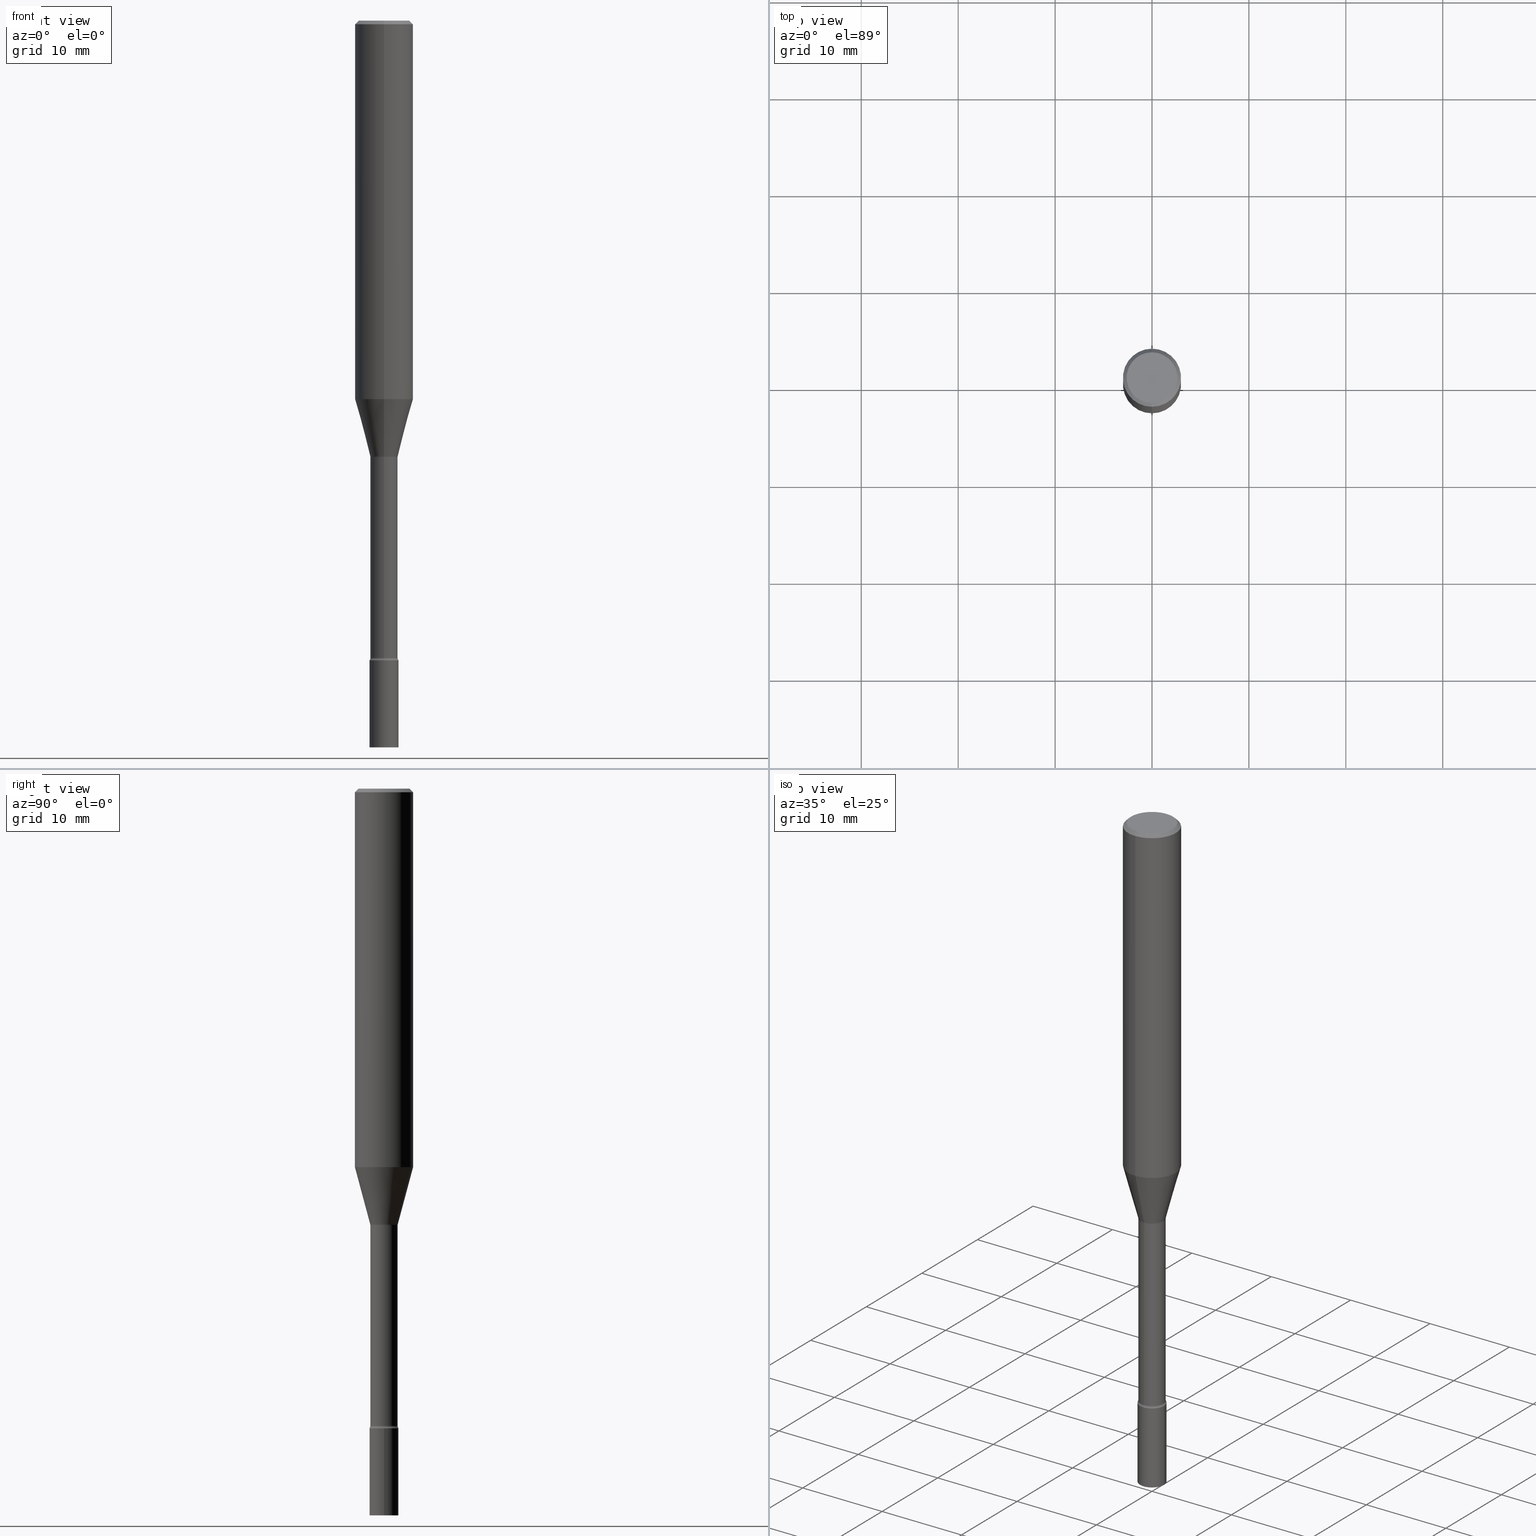
[diagram: canonical four-view strip — front | top / right | iso, engineering-drawing reading convention]
A machine part, canonical four-view strip (front | top / right | iso — engineering-drawing reading convention). The complete STEP part file that produces these views, byte-faithful:
ISO-10303-21;
HEADER;
FILE_DESCRIPTION (( 'STEP AP203' ),
    '1' );
FILE_NAME ('05371.STEP',
    '2024-03-08T23:15:07',
    ( '' ),
    ( '' ),
    'SwSTEP 2.0',
    'SolidWorks 2023',
    '' );
FILE_SCHEMA (( 'CONFIG_CONTROL_DESIGN' ));
ENDSEC;

DATA;
#1 = CALENDAR_DATE ( 2024, 8, 3 ) ;
#2 = FACE_OUTER_BOUND ( 'NONE', #502, .T. ) ;
#3 = ADVANCED_FACE ( 'NONE', ( #116 ), #242, .T. ) ;
#4 = VECTOR ( 'NONE', #37, 39.37007874015748143 ) ;
#5 = DIRECTION ( 'NONE',  ( -6.982962677686265922E-15, -1.000000000000000000, 4.922248637232907190E-15 ) ) ;
#6 = PERSON_AND_ORGANIZATION ( #392, #247 ) ;
#7 = DIRECTION ( 'NONE',  ( -6.982962677686265922E-15, -1.000000000000000000, 0.000000000000000000 ) ) ;
#8 = ORIENTED_EDGE ( 'NONE', *, *, #82, .T. ) ;
#9 = EDGE_CURVE ( 'NONE', #430, #375, #435, .T. ) ;
#10 = ORIENTED_EDGE ( 'NONE', *, *, #245, .T. ) ;
#11 = EDGE_CURVE ( 'NONE', #38, #282, #230, .T. ) ;
#12 = DIRECTION ( 'NONE',  ( -6.982962677686265922E-15, -1.000000000000000000, 0.000000000000000000 ) ) ;
#13 = PRODUCT_DEFINITION_FORMATION_WITH_SPECIFIED_SOURCE ( 'ANY', '', #113, .NOT_KNOWN. ) ;
#14 = DIRECTION ( 'NONE',  ( -2.445680166196959120E-29, 3.491178659276350979E-15, 1.000000000000000000 ) ) ;
#15 = VERTEX_POINT ( 'NONE', #34 ) ;
#16 = CIRCLE ( 'NONE', #389, 0.05904999999999999832 ) ;
#17 = ORIENTED_EDGE ( 'NONE', *, *, #451, .F. ) ;
#18 = ORIENTED_EDGE ( 'NONE', *, *, #491, .T. ) ;
#19 = DIRECTION ( 'NONE',  ( 1.000000000000000000, -6.982962677686265922E-15, 4.876176775795935793E-29 ) ) ;
#20 = VERTEX_POINT ( 'NONE', #438 ) ;
#21 = VECTOR ( 'NONE', #280, 39.37007874015748143 ) ;
#22 = FACE_OUTER_BOUND ( 'NONE', #339, .T. ) ;
#23 = ORIENTED_EDGE ( 'NONE', *, *, #174, .F. ) ;
#24 = DIRECTION ( 'NONE',  ( -2.445468806185136597E-29, 3.491481338843145583E-15, 1.000000000000000000 ) ) ;
#25 = AXIS2_PLACEMENT_3D ( 'NONE', #418, #56, #453 ) ;
#26 = CARTESIAN_POINT ( 'NONE',  ( 3.761636145230313250E-29, -5.369689796606469410E-15, -1.538073619446188589 ) ) ;
#27 = CARTESIAN_POINT ( 'NONE',  ( 4.069633519066611772E-16, 0.05549999999999111894, -2.588809927760847174 ) ) ;
#28 = LOCAL_TIME ( 18, 15, 7.000000000000000000, #323 ) ;
#29 = AXIS2_PLACEMENT_3D ( 'NONE', #195, #442, #405 ) ;
#30 = DIRECTION ( 'NONE',  ( 0.000000000000000000, 0.000000000000000000, 1.000000000000000000 ) ) ;
#31 = EDGE_CURVE ( 'NONE', #20, #212, #403, .T. ) ;
#32 = EDGE_LOOP ( 'NONE', ( #284, #137, #50, #341 ) ) ;
#33 = APPLICATION_CONTEXT ( 'configuration controlled 3d designs of mechanical parts and assemblies' ) ;
#34 = CARTESIAN_POINT ( 'NONE',  ( 4.195754854664024046E-16, 0.05904999999999088062, -2.598499999999999588 ) ) ;
#35 = PERSON_AND_ORGANIZATION ( #392, #247 ) ;
#36 = CARTESIAN_POINT ( 'NONE',  ( 6.355099911862797829E-29, -9.071827746129597685E-15, -2.598499999999999588 ) ) ;
#37 = DIRECTION ( 'NONE',  ( -2.445468806185136877E-29, 3.491481338843145188E-15, 1.000000000000000000 ) ) ;
#38 = VERTEX_POINT ( 'NONE', #321 ) ;
#39 = FACE_OUTER_BOUND ( 'NONE', #428, .T. ) ;
#40 = CIRCLE ( 'NONE', #236, 0.05549999999999999378 ) ;
#41 = SHAPE_DEFINITION_REPRESENTATION ( #229, #267 ) ;
#42 = DIRECTION ( 'NONE',  ( -2.445680166196959120E-29, 3.491178659276350979E-15, 1.000000000000000000 ) ) ;
#43 = APPROVAL_ROLE ( '' ) ;
#44 = CARTESIAN_POINT ( 'NONE',  ( 4.328346419905229650E-29, -6.178661813587029196E-15, -1.769792501787272654 ) ) ;
#45 = CALENDAR_DATE ( 2024, 8, 3 ) ;
#46 = CARTESIAN_POINT ( 'NONE',  ( -3.875544286115255238E-16, -0.05550000000000920169, -2.588809927760847174 ) ) ;
#47 = CC_DESIGN_APPROVAL ( #412, ( #13 ) ) ;
#48 = AXIS2_PLACEMENT_3D ( 'NONE', #169, #335, #294 ) ;
#49 = FACE_OUTER_BOUND ( 'NONE', #258, .T. ) ;
#50 = ORIENTED_EDGE ( 'NONE', *, *, #174, .T. ) ;
#51 = EDGE_CURVE ( 'NONE', #64, #203, #122, .T. ) ;
#52 = DIRECTION ( 'NONE',  ( -2.445680166196959400E-29, 3.491178659276351373E-15, 1.000000000000000000 ) ) ;
#53 = CLOSED_SHELL ( 'NONE', ( #104, #272, #57, #393 ) ) ;
#54 = CARTESIAN_POINT ( 'NONE',  ( 3.943512183469192595E-16, 0.05549999999999380429, -1.773674787463810798 ) ) ;
#55 = ORIENTED_EDGE ( 'NONE', *, *, #454, .T. ) ;
#56 = DIRECTION ( 'NONE',  ( -2.445680166196959120E-29, 3.491178659276350979E-15, 1.000000000000000000 ) ) ;
#57 = ADVANCED_FACE ( 'NONE', ( #516 ), #440, .T. ) ;
#58 = ORIENTED_EDGE ( 'NONE', *, *, #214, .T. ) ;
#59 = ORIENTED_EDGE ( 'NONE', *, *, #110, .F. ) ;
#60 = AXIS2_PLACEMENT_3D ( 'NONE', #376, #500, #100 ) ;
#61 = ORIENTED_EDGE ( 'NONE', *, *, #51, .T. ) ;
#62 = DIRECTION ( 'NONE',  ( -2.445680166196959120E-29, 3.491178659276350979E-15, 1.000000000000000000 ) ) ;
#63 = TOROIDAL_SURFACE ( 'NONE', #119, 0.07050000000000010425, 0.01499999999999994220 ) ;
#64 = VERTEX_POINT ( 'NONE', #413 ) ;
#65 = CARTESIAN_POINT ( 'NONE',  ( 3.979828918379984617E-16, 0.05601111260565780348, -1.769792501787272876 ) ) ;
#66 = DESIGN_CONTEXT ( 'detailed design', #33, 'design' ) ;
#67 = LOCAL_TIME ( 18, 15, 7.000000000000000000, #75 ) ;
#68 = ORIENTED_EDGE ( 'NONE', *, *, #454, .F. ) ;
#69 = AXIS2_PLACEMENT_3D ( 'NONE', #26, #509, #266 ) ;
#70 = CIRCLE ( 'NONE', #183, 0.01499999999999994220 ) ;
#71 = DIRECTION ( 'NONE',  ( -6.982962677686266711E-15, -1.000000000000000000, 0.000000000000000000 ) ) ;
#72 = CARTESIAN_POINT ( 'NONE',  ( 0.000000000000000000, 0.000000000000000000, 0.000000000000000000 ) ) ;
#73 = TOROIDAL_SURFACE ( 'NONE', #125, 0.07050000000000010425, 0.01499999999999994220 ) ;
#74 = DIRECTION ( 'NONE',  ( -2.445680166196959400E-29, 3.491178659276351373E-15, 1.000000000000000000 ) ) ;
#75 = COORDINATED_UNIVERSAL_TIME_OFFSET ( 5, 0, .BEHIND. ) ;
#76 = CC_DESIGN_PERSON_AND_ORGANIZATION_ASSIGNMENT ( #155, #285, ( #479 ) ) ;
#77 = CARTESIAN_POINT ( 'NONE',  ( 3.943512183468561013E-16, 0.05550000000000008399, -1.937604155898377489E-16 ) ) ;
#78 = APPROVAL_DATE_TIME ( #117, #218 ) ;
#79 = PLANE ( 'NONE',  #310 ) ;
#80 = EDGE_CURVE ( 'NONE', #38, #447, #296, .T. ) ;
#81 = FACE_OUTER_BOUND ( 'NONE', #415, .T. ) ;
#82 = EDGE_CURVE ( 'NONE', #430, #15, #70, .T. ) ;
#83 = AXIS2_PLACEMENT_3D ( 'NONE', #414, #133, #19 ) ;
#84 = DIRECTION ( 'NONE',  ( -6.982962677686266711E-15, -1.000000000000000000, 4.877332133888038554E-15 ) ) ;
#85 = APPROVAL_STATUS ( 'not_yet_approved' ) ;
#86 = DIRECTION ( 'NONE',  ( -2.445680166196959120E-29, 3.491178659276350979E-15, 1.000000000000000000 ) ) ;
#87 = DIRECTION ( 'NONE',  ( -2.445680166196959120E-29, 3.491178659276350979E-15, 1.000000000000000000 ) ) ;
#88 = ADVANCED_FACE ( 'NONE', ( #39 ), #250, .T. ) ;
#89 = SECURITY_CLASSIFICATION ( '', '', #278 ) ;
#90 = AXIS2_PLACEMENT_3D ( 'NONE', #167, #42, #482 ) ;
#91 = DIRECTION ( 'NONE',  ( -2.445680166196958559E-29, 3.491178659276351373E-15, 1.000000000000000000 ) ) ;
#92 = CC_DESIGN_PERSON_AND_ORGANIZATION_ASSIGNMENT ( #6, #166, ( #13 ) ) ;
#93 = DIRECTION ( 'NONE',  ( -2.445680166196959120E-29, 3.491178659276350979E-15, 1.000000000000000000 ) ) ;
#94 = DIRECTION ( 'NONE',  ( -2.445468806185136597E-29, 3.491481338843145583E-15, 1.000000000000000000 ) ) ;
#95 = ADVANCED_FACE ( 'NONE', ( #316 ), #63, .F. ) ;
#96 = CYLINDRICAL_SURFACE ( 'NONE', #25, 0.1180999999999999966 ) ;
#97 = ORIENTED_EDGE ( 'NONE', *, *, #409, .T. ) ;
#98 = LOCAL_TIME ( 18, 15, 7.000000000000000000, #126 ) ;
#99 = CC_DESIGN_PERSON_AND_ORGANIZATION_ASSIGNMENT ( #401, #162, ( #13 ) ) ;
#100 = DIRECTION ( 'NONE',  ( -6.982962677686265922E-15, -1.000000000000000000, 3.491178659276350979E-15 ) ) ;
#101 = AXIS2_PLACEMENT_3D ( 'NONE', #177, #14, #12 ) ;
#102 = EDGE_LOOP ( 'NONE', ( #175, #8, #297, #23 ) ) ;
#103 = CARTESIAN_POINT ( 'NONE',  ( 0.05904999999999999832, -4.123439461173740327E-16, 2.879382386107500220E-30 ) ) ;
#104 = ADVANCED_FACE ( 'NONE', ( #161 ), #481, .T. ) ;
#105 = ORIENTED_EDGE ( 'NONE', *, *, #245, .F. ) ;
#106 = EDGE_CURVE ( 'NONE', #256, #15, #455, .T. ) ;
#107 = DIRECTION ( 'NONE',  ( -2.445680166196959120E-29, 3.491178659276350979E-15, 1.000000000000000000 ) ) ;
#108 = AXIS2_PLACEMENT_3D ( 'NONE', #486, #124, #84 ) ;
#109 = FACE_OUTER_BOUND ( 'NONE', #102, .T. ) ;
#110 = EDGE_CURVE ( 'NONE', #420, #282, #148, .T. ) ;
#111 = VERTEX_POINT ( 'NONE', #46 ) ;
#112 = CALENDAR_DATE ( 2024, 8, 3 ) ;
#113 = PRODUCT ( '05371', '05371', '', ( #514 ) ) ;
#114 = ORIENTED_EDGE ( 'NONE', *, *, #222, .T. ) ;
#115 = CIRCLE ( 'NONE', #292, 0.05904999999999999832 ) ;
#116 = FACE_OUTER_BOUND ( 'NONE', #396, .T. ) ;
#117 = DATE_AND_TIME ( #1, #370 ) ;
#118 = DIRECTION ( 'NONE',  ( -2.445680166196959120E-29, 3.491178659276350979E-15, 1.000000000000000000 ) ) ;
#119 = AXIS2_PLACEMENT_3D ( 'NONE', #159, #515, #402 ) ;
#120 = PERSON_AND_ORGANIZATION ( #392, #247 ) ;
#121 = DIRECTION ( 'NONE',  ( -2.445680166196959120E-29, 3.491178659276350979E-15, 1.000000000000000000 ) ) ;
#122 = LINE ( 'NONE', #358, #21 ) ;
#123 = AXIS2_PLACEMENT_3D ( 'NONE', #193, #319, #275 ) ;
#124 = DIRECTION ( 'NONE',  ( -2.445680166196959120E-29, 3.491178659276350979E-15, 1.000000000000000000 ) ) ;
#125 = AXIS2_PLACEMENT_3D ( 'NONE', #312, #423, #150 ) ;
#126 = COORDINATED_UNIVERSAL_TIME_OFFSET ( 5, 0, .BEHIND. ) ;
#127 = DIRECTION ( 'NONE',  ( 2.445680166196959120E-29, -3.491178659276350979E-15, -1.000000000000000000 ) ) ;
#128 = ORIENTED_EDGE ( 'NONE', *, *, #201, .T. ) ;
#129 = CARTESIAN_POINT ( 'NONE',  ( 0.05904999999999999832, -9.484958205101287110E-15, -2.598499999999999588 ) ) ;
#130 = DIRECTION ( 'NONE',  ( -2.445468806185136877E-29, 3.491481338843145188E-15, 1.000000000000000000 ) ) ;
#131 = ORIENTED_EDGE ( 'NONE', *, *, #325, .T. ) ;
#132 = CIRCLE ( 'NONE', #210, 0.05549999999999999378 ) ;
#133 = DIRECTION ( 'NONE',  ( -2.438088387897960049E-29, 3.491481338843145188E-15, 1.000000000000000000 ) ) ;
#134 = DIRECTION ( 'NONE',  ( 2.445680166196959120E-29, -3.491178659276350979E-15, -1.000000000000000000 ) ) ;
#135 = EDGE_CURVE ( 'NONE', #15, #256, #16, .T. ) ;
#136 = ORIENTED_EDGE ( 'NONE', *, *, #192, .T. ) ;
#137 = ORIENTED_EDGE ( 'NONE', *, *, #180, .F. ) ;
#138 = FACE_OUTER_BOUND ( 'NONE', #422, .T. ) ;
#139 = ORIENTED_EDGE ( 'NONE', *, *, #80, .F. ) ;
#140 = DIRECTION ( 'NONE',  ( -1.000000000000000000, 6.982962677686265922E-15, -4.876176775795935793E-29 ) ) ;
#141 = CIRCLE ( 'NONE', #432, 0.1031000000000000111 ) ;
#142 = AXIS2_PLACEMENT_3D ( 'NONE', #72, #30, #331 ) ;
#143 = APPLICATION_CONTEXT ( 'configuration controlled 3d designs of mechanical parts and assemblies' ) ;
#144 = AXIS2_PLACEMENT_3D ( 'NONE', #317, #94, #329 ) ;
#145 = DIRECTION ( 'NONE',  ( -6.982962677686265922E-15, -1.000000000000000000, 4.922248637232907190E-15 ) ) ;
#146 =( CONVERSION_BASED_UNIT ( 'INCH', #391 ) LENGTH_UNIT ( ) NAMED_UNIT ( #147 ) );
#147 = DIMENSIONAL_EXPONENTS ( 1.000000000000000000, 0.000000000000000000, 0.000000000000000000, 0.000000000000000000, 0.000000000000000000, 0.000000000000000000, 0.000000000000000000 ) ;
#148 = CIRCLE ( 'NONE', #346, 0.1180999999999999966 ) ;
#149 = EDGE_CURVE ( 'NONE', #408, #375, #470, .T. ) ;
#150 = DIRECTION ( 'NONE',  ( -6.982962677686265922E-15, -1.000000000000000000, 3.491178659276350979E-15 ) ) ;
#151 = VERTEX_POINT ( 'NONE', #520 ) ;
#152 = CARTESIAN_POINT ( 'NONE',  ( 8.391509709327160624E-16, 0.1180999999999999411, -0.01500000000000042619 ) ) ;
#153 = ORIENTED_EDGE ( 'NONE', *, *, #288, .T. ) ;
#154 = ORIENTED_EDGE ( 'NONE', *, *, #417, .F. ) ;
#155 = PERSON_AND_ORGANIZATION ( #392, #247 ) ;
#156 = ADVANCED_FACE ( 'NONE', ( #320 ), #79, .F. ) ;
#157 = CARTESIAN_POINT ( 'NONE',  ( 6.355099911862797829E-29, -9.071827746129597685E-15, -2.598499999999999588 ) ) ;
#158 = AXIS2_PLACEMENT_3D ( 'NONE', #374, #134, #248 ) ;
#159 = CARTESIAN_POINT ( 'NONE',  ( 6.330853923481548511E-29, -9.038781552588869753E-15, -2.588809927760847174 ) ) ;
#160 = COORDINATED_UNIVERSAL_TIME_OFFSET ( 5, 0, .BEHIND. ) ;
#161 = FACE_OUTER_BOUND ( 'NONE', #204, .T. ) ;
#162 = PERSON_AND_ORGANIZATION_ROLE ( 'creator' ) ;
#163 = CARTESIAN_POINT ( 'NONE',  ( -8.246878922347479668E-16, -0.1180999999999999966, 4.123081996605370469E-16 ) ) ;
#164 = ADVANCED_FACE ( 'NONE', ( #81 ), #171, .T. ) ;
#165 = AXIS2_PLACEMENT_3D ( 'NONE', #384, #334, #290 ) ;
#166 = PERSON_AND_ORGANIZATION_ROLE ( 'design_supplier' ) ;
#167 = CARTESIAN_POINT ( 'NONE',  ( 0.000000000000000000, 0.000000000000000000, 0.000000000000000000 ) ) ;
#168 = PLANE ( 'NONE',  #510 ) ;
#169 = CARTESIAN_POINT ( 'NONE',  ( 0.000000000000000000, 0.000000000000000000, 0.000000000000000000 ) ) ;
#170 = EDGE_CURVE ( 'NONE', #207, #212, #199, .T. ) ;
#171 = CONICAL_SURFACE ( 'NONE', #426, 0.1180999999999999966, 0.7853981633974480570 ) ;
#172 = LINE ( 'NONE', #257, #395 ) ;
#173 = ORIENTED_EDGE ( 'NONE', *, *, #298, .T. ) ;
#174 = EDGE_CURVE ( 'NONE', #111, #256, #492, .T. ) ;
#175 = ORIENTED_EDGE ( 'NONE', *, *, #311, .F. ) ;
#176 = DIRECTION ( 'NONE',  ( -1.000000000000000000, 6.982962677686265922E-15, -4.883557194083112340E-29 ) ) ;
#177 = CARTESIAN_POINT ( 'NONE',  ( 6.331401094378485803E-29, -9.037997972721422711E-15, -2.588809927760847174 ) ) ;
#178 = VERTEX_POINT ( 'NONE', #324 ) ;
#179 = CARTESIAN_POINT ( 'NONE',  ( 4.123439461174461642E-16, 0.05904999999998968713, -2.952799999999999869 ) ) ;
#180 = EDGE_CURVE ( 'NONE', #111, #430, #463, .T. ) ;
#181 = DIRECTION ( 'NONE',  ( 1.000000000000000000, -6.982962677686273021E-15, 0.000000000000000000 ) ) ;
#182 = CIRCLE ( 'NONE', #165, 0.1180999999999999966 ) ;
#183 = AXIS2_PLACEMENT_3D ( 'NONE', #265, #224, #235 ) ;
#184 =( LENGTH_UNIT ( ) NAMED_UNIT ( * ) SI_UNIT ( $, .METRE. ) );
#185 = VECTOR ( 'NONE', #74, 39.37007874015748143 ) ;
#186 = DIRECTION ( 'NONE',  ( 1.839019923739600315E-15, 0.2588190451025249583, 0.9659258262890670910 ) ) ;
#187 = ADVANCED_FACE ( 'NONE', ( #2 ), #234, .T. ) ;
#188 = CARTESIAN_POINT ( 'NONE',  ( 7.220980290903470182E-29, -1.030964609733603853E-14, -2.952799999999999869 ) ) ;
#189 = ORIENTED_EDGE ( 'NONE', *, *, #106, .F. ) ;
#190 = APPROVAL ( #366, 'UNSPECIFIED' ) ;
#191 = CARTESIAN_POINT ( 'NONE',  ( 4.328346419905229650E-29, -6.178661813587029196E-15, -1.769792501787272654 ) ) ;
#192 = EDGE_CURVE ( 'NONE', #38, #408, #462, .T. ) ;
#193 = CARTESIAN_POINT ( 'NONE',  ( 4.328346419905229650E-29, -6.178661813587029196E-15, -1.769792501787272654 ) ) ;
#194 = APPROVAL_ROLE ( '' ) ;
#195 = CARTESIAN_POINT ( 'NONE',  ( 6.354550692872077420E-29, -9.072614258983912979E-15, -2.598499999999999588 ) ) ;
#196 = EDGE_CURVE ( 'NONE', #447, #375, #40, .T. ) ;
#197 = DIRECTION ( 'NONE',  ( -2.445680166196959400E-29, 3.491178659276351373E-15, 1.000000000000000000 ) ) ;
#198 = CARTESIAN_POINT ( 'NONE',  ( -0.05904999999999999832, 4.195754854663391478E-16, -2.904631170795521892E-30 ) ) ;
#199 = CIRCLE ( 'NONE', #29, 0.05904999999999999832 ) ;
#200 = DIRECTION ( 'NONE',  ( -2.445468806185136597E-29, 3.491481338843145583E-15, 1.000000000000000000 ) ) ;
#201 = EDGE_CURVE ( 'NONE', #282, #203, #400, .T. ) ;
#202 = DIRECTION ( 'NONE',  ( 6.982962677686265922E-15, 1.000000000000000000, -3.491178659276351373E-15 ) ) ;
#203 = VERTEX_POINT ( 'NONE', #328 ) ;
#204 = EDGE_LOOP ( 'NONE', ( #131, #383, #301, #459 ) ) ;
#205 = AXIS2_PLACEMENT_3D ( 'NONE', #445, #364, #439 ) ;
#206 = CARTESIAN_POINT ( 'NONE',  ( -4.123439461173101350E-16, -0.05905000000000903276, -2.598499999999999588 ) ) ;
#207 = VERTEX_POINT ( 'NONE', #129 ) ;
#208 = DIRECTION ( 'NONE',  ( 1.000000000000000000, -6.982962677686273021E-15, 0.000000000000000000 ) ) ;
#209 = FACE_OUTER_BOUND ( 'NONE', #489, .T. ) ;
#210 = AXIS2_PLACEMENT_3D ( 'NONE', #308, #350, #145 ) ;
#211 = CYLINDRICAL_SURFACE ( 'NONE', #60, 0.1180999999999999966 ) ;
#212 = VERTEX_POINT ( 'NONE', #446 ) ;
#213 = CARTESIAN_POINT ( 'NONE',  ( 4.337466365059800679E-29, -6.192752421606477227E-15, -1.773674787463810576 ) ) ;
#214 = EDGE_CURVE ( 'NONE', #151, #207, #372, .T. ) ;
#215 = EDGE_LOOP ( 'NONE', ( #300, #18, #58, #105 ) ) ;
#216 = ORIENTED_EDGE ( 'NONE', *, *, #201, .F. ) ;
#217 = LINE ( 'NONE', #349, #362 ) ;
#218 = APPROVAL ( #436, 'UNSPECIFIED' ) ;
#219 = APPROVAL_PERSON_ORGANIZATION ( #233, #412, #43 ) ;
#220 = VECTOR ( 'NONE', #259, 39.37007874015748143 ) ;
#221 = ORIENTED_EDGE ( 'NONE', *, *, #508, .F. ) ;
#222 = EDGE_CURVE ( 'NONE', #111, #447, #172, .T. ) ;
#223 = CC_DESIGN_PERSON_AND_ORGANIZATION_ASSIGNMENT ( #314, #478, ( #113 ) ) ;
#224 = DIRECTION ( 'NONE',  ( 1.000000000000000000, -7.105427357601001070E-15, 4.926311801786455932E-29 ) ) ;
#225 = EDGE_LOOP ( 'NONE', ( #55, #173 ) ) ;
#226 = DIRECTION ( 'NONE',  ( -2.445680166196959120E-29, 3.491178659276350979E-15, 1.000000000000000000 ) ) ;
#227 = CIRCLE ( 'NONE', #379, 0.05904999999999999832 ) ;
#228 = DATE_AND_TIME ( #433, #67 ) ;
#229 = PRODUCT_DEFINITION_SHAPE ( 'NONE', 'NONE',  #479 ) ;
#230 = LINE ( 'NONE', #517, #268 ) ;
#231 = CALENDAR_DATE ( 2024, 8, 3 ) ;
#232 = CARTESIAN_POINT ( 'NONE',  ( 4.337841248983848354E-29, -6.192215566490173513E-15, -1.773674787463810576 ) ) ;
#233 = PERSON_AND_ORGANIZATION ( #392, #247 ) ;
#234 = CYLINDRICAL_SURFACE ( 'NONE', #90, 0.05550000000000008399 ) ;
#235 = DIRECTION ( 'NONE',  ( 7.105427357601001859E-15, 1.000000000000000000, 0.000000000000000000 ) ) ;
#236 = AXIS2_PLACEMENT_3D ( 'NONE', #232, #238, #5 ) ;
#237 = DATE_TIME_ROLE ( 'creation_date' ) ;
#238 = DIRECTION ( 'NONE',  ( -2.445680166196959120E-29, 3.491178659276350979E-15, 1.000000000000000000 ) ) ;
#239 = APPROVAL_DATE_TIME ( #444, #412 ) ;
#240 = CARTESIAN_POINT ( 'NONE',  ( 3.668520249295442112E-31, -5.236767988914531473E-17, -0.01500000000000001506 ) ) ;
#241 = EDGE_LOOP ( 'NONE', ( #380, #336 ) ) ;
#242 = CONICAL_SURFACE ( 'NONE', #123, 0.05601111260566397909, 0.2617993877991502960 ) ;
#243 = DIRECTION ( 'NONE',  ( 6.982962677686265922E-15, 1.000000000000000000, -3.487819265831411744E-15 ) ) ;
#244 = AXIS2_PLACEMENT_3D ( 'NONE', #467, #226, #394 ) ;
#245 = EDGE_CURVE ( 'NONE', #212, #207, #115, .T. ) ;
#246 = AXIS2_PLACEMENT_3D ( 'NONE', #416, #62, #488 ) ;
#247 = ORGANIZATION ( 'UNSPECIFIED', 'UNSPECIFIED', '' ) ;
#248 = DIRECTION ( 'NONE',  ( 6.982962677686265922E-15, 1.000000000000000000, -3.487819265831411744E-15 ) ) ;
#249 = ADVANCED_FACE ( 'NONE', ( #421 ), #330, .T. ) ;
#250 = CONICAL_SURFACE ( 'NONE', #354, 0.05601111260566397909, 0.2617993877991502960 ) ;
#251 = PLANE ( 'NONE',  #83 ) ;
#252 = AXIS2_PLACEMENT_3D ( 'NONE', #277, #200, #287 ) ;
#253 = ORIENTED_EDGE ( 'NONE', *, *, #483, .T. ) ;
#254 = FACE_OUTER_BOUND ( 'NONE', #342, .T. ) ;
#255 = ORIENTED_EDGE ( 'NONE', *, *, #192, .F. ) ;
#256 = VERTEX_POINT ( 'NONE', #206 ) ;
#257 = CARTESIAN_POINT ( 'NONE',  ( -3.875544286115883369E-16, -0.05550000000000008399, 1.937604155898377489E-16 ) ) ;
#258 = EDGE_LOOP ( 'NONE', ( #189, #313 ) ) ;
#259 = DIRECTION ( 'NONE',  ( 4.937700262164546464E-15, 0.7071067811865449082, -0.7071067811865501263 ) ) ;
#260 = EDGE_LOOP ( 'NONE', ( #368, #253, #355, #216 ) ) ;
#261 = EDGE_LOOP ( 'NONE', ( #378, #255, #493, #344 ) ) ;
#262 = LINE ( 'NONE', #506, #220 ) ;
#263 =( NAMED_UNIT ( * ) SI_UNIT ( $, .STERADIAN. ) SOLID_ANGLE_UNIT ( ) );
#264 = AXIS2_PLACEMENT_3D ( 'NONE', #367, #118, #7 ) ;
#265 = CARTESIAN_POINT ( 'NONE',  ( 5.009326287109345793E-16, 0.07049999999999105593, -2.588809927760847174 ) ) ;
#266 = DIRECTION ( 'NONE',  ( -6.982962677686265922E-15, -1.000000000000000000, 4.626330217890369336E-15 ) ) ;
#267 = ADVANCED_BREP_SHAPE_REPRESENTATION ( '05371', ( #472, #475, #142 ), #302 ) ;
#268 = VECTOR ( 'NONE', #431, 39.37007874015748143 ) ;
#269 = ORIENTED_EDGE ( 'NONE', *, *, #398, .F. ) ;
#270 = PERSON_AND_ORGANIZATION_ROLE ( 'classification_officer' ) ;
#271 = APPROVAL_PERSON_ORGANIZATION ( #120, #190, #441 ) ;
#272 = ADVANCED_FACE ( 'NONE', ( #22 ), #251, .T. ) ;
#273 = AXIS2_PLACEMENT_3D ( 'NONE', #157, #87, #283 ) ;
#274 = ORIENTED_EDGE ( 'NONE', *, *, #11, .F. ) ;
#275 = DIRECTION ( 'NONE',  ( -6.982962677686266711E-15, -1.000000000000000000, 4.877332133888038554E-15 ) ) ;
#276 = APPROVAL_DATE_TIME ( #326, #190 ) ;
#277 = CARTESIAN_POINT ( 'NONE',  ( 0.000000000000000000, 0.000000000000000000, 0.000000000000000000 ) ) ;
#278 = SECURITY_CLASSIFICATION_LEVEL ( 'unclassified' ) ;
#279 = DIRECTION ( 'NONE',  ( -6.982962677686265922E-15, -1.000000000000000000, 4.626330217890369336E-15 ) ) ;
#280 = DIRECTION ( 'NONE',  ( -4.851104656540962697E-15, -0.7071067811865497932, -0.7071067811865452413 ) ) ;
#281 = ADVANCED_FACE ( 'NONE', ( #254 ), #369, .F. ) ;
#282 = VERTEX_POINT ( 'NONE', #465 ) ;
#283 = DIRECTION ( 'NONE',  ( -6.982962677686265922E-15, -1.000000000000000000, 0.000000000000000000 ) ) ;
#284 = ORIENTED_EDGE ( 'NONE', *, *, #82, .F. ) ;
#285 = PERSON_AND_ORGANIZATION_ROLE ( 'creator' ) ;
#286 = CARTESIAN_POINT ( 'NONE',  ( -4.922988687768191399E-16, -0.07050000000000913869, -2.588809927760847174 ) ) ;
#287 = DIRECTION ( 'NONE',  ( 1.000000000000000000, -6.982962677686266711E-15, 4.876176775795936353E-29 ) ) ;
#288 = EDGE_CURVE ( 'NONE', #203, #458, #182, .T. ) ;
#289 = ORIENTED_EDGE ( 'NONE', *, *, #180, .T. ) ;
#290 = DIRECTION ( 'NONE',  ( -6.982962677686265922E-15, -1.000000000000000000, 3.487819265831411744E-15 ) ) ;
#291 = ORIENTED_EDGE ( 'NONE', *, *, #196, .F. ) ;
#292 = AXIS2_PLACEMENT_3D ( 'NONE', #381, #410, #208 ) ;
#293 = CARTESIAN_POINT ( 'NONE',  ( 7.220980290903470182E-29, -1.030964609733603853E-14, -2.952799999999999869 ) ) ;
#294 = DIRECTION ( 'NONE',  ( -6.982962677686265922E-15, -1.000000000000000000, 3.491178659276350584E-15 ) ) ;
#295 = ORIENTED_EDGE ( 'NONE', *, *, #9, .F. ) ;
#296 = CIRCLE ( 'NONE', #507, 0.01500000000000001159 ) ;
#297 = ORIENTED_EDGE ( 'NONE', *, *, #135, .T. ) ;
#298 = EDGE_CURVE ( 'NONE', #64, #178, #318, .T. ) ;
#299 = DIRECTION ( 'NONE',  ( -6.982962677686265922E-15, -1.000000000000000000, 3.491178659276351373E-15 ) ) ;
#300 = ORIENTED_EDGE ( 'NONE', *, *, #31, .F. ) ;
#301 = ORIENTED_EDGE ( 'NONE', *, *, #170, .F. ) ;
#302 =( GEOMETRIC_REPRESENTATION_CONTEXT ( 3 ) GLOBAL_UNCERTAINTY_ASSIGNED_CONTEXT ( ( #371 ) ) GLOBAL_UNIT_ASSIGNED_CONTEXT ( ( #146, #429, #263 ) ) REPRESENTATION_CONTEXT ( 'NONE', 'WORKASPACE' ) );
#303 = ORIENTED_EDGE ( 'NONE', *, *, #51, .F. ) ;
#304 = AXIS2_PLACEMENT_3D ( 'NONE', #191, #511, #427 ) ;
#305 = CC_DESIGN_DATE_AND_TIME_ASSIGNMENT ( #228, #397, ( #89 ) ) ;
#306 = CC_DESIGN_APPROVAL ( #190, ( #479 ) ) ;
#307 = LINE ( 'NONE', #65, #443 ) ;
#308 = CARTESIAN_POINT ( 'NONE',  ( 4.337841248983848354E-29, -6.192215566490173513E-15, -1.773674787463810576 ) ) ;
#309 = CARTESIAN_POINT ( 'NONE',  ( 4.337466365059800679E-29, -6.192752421606477227E-15, -1.773674787463810576 ) ) ;
#310 = AXIS2_PLACEMENT_3D ( 'NONE', #437, #365, #202 ) ;
#311 = EDGE_CURVE ( 'NONE', #430, #111, #503, .T. ) ;
#312 = CARTESIAN_POINT ( 'NONE',  ( 6.330853923481548511E-29, -9.038781552588869753E-15, -2.588809927760847174 ) ) ;
#313 = ORIENTED_EDGE ( 'NONE', *, *, #135, .F. ) ;
#314 = PERSON_AND_ORGANIZATION ( #392, #247 ) ;
#315 = APPROVAL_PERSON_ORGANIZATION ( #35, #218, #194 ) ;
#316 = FACE_OUTER_BOUND ( 'NONE', #32, .T. ) ;
#317 = CARTESIAN_POINT ( 'NONE',  ( 0.000000000000000000, 0.000000000000000000, 0.000000000000000000 ) ) ;
#318 = CIRCLE ( 'NONE', #246, 0.1031000000000000111 ) ;
#319 = DIRECTION ( 'NONE',  ( -2.445680166196959120E-29, 3.491178659276350979E-15, 1.000000000000000000 ) ) ;
#320 = FACE_OUTER_BOUND ( 'NONE', #225, .T. ) ;
#321 = CARTESIAN_POINT ( 'NONE',  ( -3.911235088609910457E-16, -0.05601111260567016165, -1.769792501787272432 ) ) ;
#322 = ORIENTED_EDGE ( 'NONE', *, *, #417, .T. ) ;
#323 = COORDINATED_UNIVERSAL_TIME_OFFSET ( 5, 0, .BEHIND. ) ;
#324 = CARTESIAN_POINT ( 'NONE',  ( 7.723156721521011834E-16, 0.1031000000000000111, -3.744225582646670452E-16 ) ) ;
#325 = EDGE_CURVE ( 'NONE', #151, #20, #227, .T. ) ;
#326 = DATE_AND_TIME ( #112, #28 ) ;
#327 = CC_DESIGN_SECURITY_CLASSIFICATION ( #89, ( #13 ) ) ;
#328 = CARTESIAN_POINT ( 'NONE',  ( -8.246878922347475723E-16, -0.1181000000000000522, -0.01499999999999960393 ) ) ;
#329 = DIRECTION ( 'NONE',  ( 1.000000000000000000, -6.982962677686266711E-15, 4.876176775795936353E-29 ) ) ;
#330 = CONICAL_SURFACE ( 'NONE', #158, 0.1180999999999999966, 0.7853981633974480570 ) ;
#331 = DIRECTION ( 'NONE',  ( 1.000000000000000000, 0.000000000000000000, 0.000000000000000000 ) ) ;
#332 = CARTESIAN_POINT ( 'NONE',  ( 3.761636145230313250E-29, -5.369689796606469410E-15, -1.538073619446188589 ) ) ;
#333 = ORIENTED_EDGE ( 'NONE', *, *, #298, .F. ) ;
#334 = DIRECTION ( 'NONE',  ( -2.445680166196959120E-29, 3.491178659276350979E-15, 1.000000000000000000 ) ) ;
#335 = DIRECTION ( 'NONE',  ( -2.445680166196959120E-29, 3.491178659276350979E-15, 1.000000000000000000 ) ) ;
#336 = ORIENTED_EDGE ( 'NONE', *, *, #491, .F. ) ;
#337 = AXIS2_PLACEMENT_3D ( 'NONE', #286, #407, #357 ) ;
#338 = DIRECTION ( 'NONE',  ( -2.445468806185136597E-29, 3.491481338843145583E-15, 1.000000000000000000 ) ) ;
#339 = EDGE_LOOP ( 'NONE', ( #476, #10 ) ) ;
#340 = CYLINDRICAL_SURFACE ( 'NONE', #48, 0.05550000000000008399 ) ;
#341 = ORIENTED_EDGE ( 'NONE', *, *, #106, .T. ) ;
#342 = EDGE_LOOP ( 'NONE', ( #513, #498, #496, #139 ) ) ;
#343 = DIRECTION ( 'NONE',  ( 2.438088387897960049E-29, -3.491481338843145188E-15, -1.000000000000000000 ) ) ;
#344 = ORIENTED_EDGE ( 'NONE', *, *, #196, .T. ) ;
#345 = CC_DESIGN_APPROVAL ( #218, ( #89 ) ) ;
#346 = AXIS2_PLACEMENT_3D ( 'NONE', #332, #121, #279 ) ;
#347 = ADVANCED_FACE ( 'NONE', ( #49 ), #168, .F. ) ;
#348 = DIRECTION ( 'NONE',  ( -6.982962677686265922E-15, -1.000000000000000000, 3.491178659276350979E-15 ) ) ;
#349 = CARTESIAN_POINT ( 'NONE',  ( 8.391509709326781971E-16, 0.1180999999999999966, -4.123081996605370469E-16 ) ) ;
#350 = DIRECTION ( 'NONE',  ( -2.445680166196959120E-29, 3.491178659276350979E-15, 1.000000000000000000 ) ) ;
#351 = CIRCLE ( 'NONE', #304, 0.05601111260566397909 ) ;
#352 = ADVANCED_FACE ( 'NONE', ( #138 ), #340, .T. ) ;
#353 = CARTESIAN_POINT ( 'NONE',  ( -3.875544286115443579E-16, -0.05550000000000618328, -1.773674787463810354 ) ) ;
#354 = AXIS2_PLACEMENT_3D ( 'NONE', #44, #86, #484 ) ;
#355 = ORIENTED_EDGE ( 'NONE', *, *, #288, .F. ) ;
#356 = DATE_AND_TIME ( #231, #98 ) ;
#357 = DIRECTION ( 'NONE',  ( -6.982962677686262766E-15, -1.000000000000000000, 0.000000000000000000 ) ) ;
#358 = CARTESIAN_POINT ( 'NONE',  ( -8.102248135368174406E-16, -0.1181000000000000522, -0.01499999999999960393 ) ) ;
#359 = APPLICATION_PROTOCOL_DEFINITION ( 'international standard', 'config_control_design', 1994, #33 ) ;
#360 = LOCAL_TIME ( 18, 15, 7.000000000000000000, #406 ) ;
#361 = DIRECTION ( 'NONE',  ( -2.445680166196959120E-29, 3.491178659276350979E-15, 1.000000000000000000 ) ) ;
#362 = VECTOR ( 'NONE', #387, 39.37007874015748143 ) ;
#363 = ADVANCED_FACE ( 'NONE', ( #490 ), #96, .T. ) ;
#364 = DIRECTION ( 'NONE',  ( 1.000000000000000000, -7.105427357601001070E-15, 4.926311801786455932E-29 ) ) ;
#365 = DIRECTION ( 'NONE',  ( 2.445680166196958559E-29, -3.491178659276351373E-15, -1.000000000000000000 ) ) ;
#366 = APPROVAL_STATUS ( 'not_yet_approved' ) ;
#367 = CARTESIAN_POINT ( 'NONE',  ( 6.331401094378485803E-29, -9.037997972721422711E-15, -2.588809927760847174 ) ) ;
#368 = ORIENTED_EDGE ( 'NONE', *, *, #451, .T. ) ;
#369 = TOROIDAL_SURFACE ( 'NONE', #411, 0.07049999999999999323, 0.01500000000000001853 ) ;
#370 = LOCAL_TIME ( 18, 15, 7.000000000000000000, #160 ) ;
#371 = UNCERTAINTY_MEASURE_WITH_UNIT (LENGTH_MEASURE( 1.000000000000000082E-05 ), #146, 'distance_accuracy_value', 'NONE');
#372 = LINE ( 'NONE', #103, #477 ) ;
#373 = CC_DESIGN_PERSON_AND_ORGANIZATION_ASSIGNMENT ( #519, #270, ( #89 ) ) ;
#374 = CARTESIAN_POINT ( 'NONE',  ( 3.668520249295442112E-31, -5.236767988914531473E-17, -0.01500000000000001506 ) ) ;
#375 = VERTEX_POINT ( 'NONE', #54 ) ;
#376 = CARTESIAN_POINT ( 'NONE',  ( 0.000000000000000000, 0.000000000000000000, 0.000000000000000000 ) ) ;
#377 = ADVANCED_FACE ( 'NONE', ( #209 ), #211, .T. ) ;
#378 = ORIENTED_EDGE ( 'NONE', *, *, #149, .F. ) ;
#379 = AXIS2_PLACEMENT_3D ( 'NONE', #293, #338, #494 ) ;
#380 = ORIENTED_EDGE ( 'NONE', *, *, #325, .F. ) ;
#381 = CARTESIAN_POINT ( 'NONE',  ( 6.354550692872077420E-29, -9.072614258983912979E-15, -2.598499999999999588 ) ) ;
#382 = ORIENTED_EDGE ( 'NONE', *, *, #398, .T. ) ;
#383 = ORIENTED_EDGE ( 'NONE', *, *, #31, .T. ) ;
#384 = CARTESIAN_POINT ( 'NONE',  ( 3.668520249295442112E-31, -5.236767988914531473E-17, -0.01500000000000001506 ) ) ;
#385 = ORIENTED_EDGE ( 'NONE', *, *, #9, .T. ) ;
#386 = ORIENTED_EDGE ( 'NONE', *, *, #483, .F. ) ;
#387 = DIRECTION ( 'NONE',  ( -2.445680166196959400E-29, 3.491178659276351373E-15, 1.000000000000000000 ) ) ;
#388 = CIRCLE ( 'NONE', #244, 0.1180999999999999966 ) ;
#389 = AXIS2_PLACEMENT_3D ( 'NONE', #36, #361, #480 ) ;
#390 = CARTESIAN_POINT ( 'NONE',  ( 8.391509709327159638E-16, 0.1180999999999946537, -1.538073619446189255 ) ) ;
#391 = LENGTH_MEASURE_WITH_UNIT ( LENGTH_MEASURE( 0.02539999999999999897 ), #184 );
#392 = PERSON ( 'UNSPECIFIED', 'UNSPECIFIED', 'UNSPECIFIED', ('UNSPECIFIED'), ('UNSPECIFIED'), ('UNSPECIFIED') ) ;
#393 = ADVANCED_FACE ( 'NONE', ( #497 ), #461, .T. ) ;
#394 = DIRECTION ( 'NONE',  ( -6.982962677686265922E-15, -1.000000000000000000, 3.487819265831411744E-15 ) ) ;
#395 = VECTOR ( 'NONE', #52, 39.37007874015748143 ) ;
#396 = EDGE_LOOP ( 'NONE', ( #269, #97, #460, #59 ) ) ;
#397 = DATE_TIME_ROLE ( 'classification_date' ) ;
#398 = EDGE_CURVE ( 'NONE', #408, #420, #307, .T. ) ;
#399 = CLOSED_SHELL ( 'NONE', ( #281, #187, #424, #164, #363, #88, #3, #377, #249, #156, #347, #95, #352, #499 ) ) ;
#400 = LINE ( 'NONE', #163, #404 ) ;
#401 = PERSON_AND_ORGANIZATION ( #392, #247 ) ;
#402 = DIRECTION ( 'NONE',  ( -6.982962677686265922E-15, -1.000000000000000000, 3.491178659276350979E-15 ) ) ;
#403 = LINE ( 'NONE', #198, #4 ) ;
#404 = VECTOR ( 'NONE', #197, 39.37007874015748143 ) ;
#405 = DIRECTION ( 'NONE',  ( 1.000000000000000000, -6.982962677686273021E-15, 0.000000000000000000 ) ) ;
#406 = COORDINATED_UNIVERSAL_TIME_OFFSET ( 5, 0, .BEHIND. ) ;
#407 = DIRECTION ( 'NONE',  ( -1.000000000000000000, 6.982962677686265922E-15, -4.883557194083112340E-29 ) ) ;
#408 = VERTEX_POINT ( 'NONE', #474 ) ;
#409 = EDGE_CURVE ( 'NONE', #408, #38, #351, .T. ) ;
#410 = DIRECTION ( 'NONE',  ( -2.445468806185136597E-29, 3.491481338843145583E-15, 1.000000000000000000 ) ) ;
#411 = AXIS2_PLACEMENT_3D ( 'NONE', #213, #93, #457 ) ;
#412 = APPROVAL ( #85, 'UNSPECIFIED' ) ;
#413 = CARTESIAN_POINT ( 'NONE',  ( -7.587710785535310407E-16, -0.1031000000000000111, 3.454584812781165548E-16 ) ) ;
#414 = CARTESIAN_POINT ( 'NONE',  ( 6.354550692872077420E-29, -9.072614258983912979E-15, -2.598499999999999588 ) ) ;
#415 = EDGE_LOOP ( 'NONE', ( #333, #61, #153, #154 ) ) ;
#416 = CARTESIAN_POINT ( 'NONE',  ( 3.541843430910425470E-46, -5.055938373054130789E-32, -1.448203849327528216E-17 ) ) ;
#417 = EDGE_CURVE ( 'NONE', #178, #458, #262, .T. ) ;
#418 = CARTESIAN_POINT ( 'NONE',  ( 0.000000000000000000, 0.000000000000000000, 0.000000000000000000 ) ) ;
#419 = CIRCLE ( 'NONE', #485, 0.05904999999999999832 ) ;
#420 = VERTEX_POINT ( 'NONE', #390 ) ;
#421 = FACE_OUTER_BOUND ( 'NONE', #495, .T. ) ;
#422 = EDGE_LOOP ( 'NONE', ( #295, #487, #114, #449 ) ) ;
#423 = DIRECTION ( 'NONE',  ( -2.445680166196959120E-29, 3.491178659276350979E-15, 1.000000000000000000 ) ) ;
#424 = ADVANCED_FACE ( 'NONE', ( #109 ), #73, .F. ) ;
#425 = FACE_OUTER_BOUND ( 'NONE', #261, .T. ) ;
#426 = AXIS2_PLACEMENT_3D ( 'NONE', #240, #127, #243 ) ;
#427 = DIRECTION ( 'NONE',  ( -6.982962677686266711E-15, -1.000000000000000000, 4.877332133888038554E-15 ) ) ;
#428 = EDGE_LOOP ( 'NONE', ( #136, #382, #17, #274 ) ) ;
#429 =( NAMED_UNIT ( * ) PLANE_ANGLE_UNIT ( ) SI_UNIT ( $, .RADIAN. ) );
#430 = VERTEX_POINT ( 'NONE', #27 ) ;
#431 = DIRECTION ( 'NONE',  ( -1.807323732225330139E-15, -0.2588190451025181860, 0.9659258262890689783 ) ) ;
#432 = AXIS2_PLACEMENT_3D ( 'NONE', #469, #107, #512 ) ;
#433 = CALENDAR_DATE ( 2024, 8, 3 ) ;
#434 = EDGE_CURVE ( 'NONE', #375, #447, #132, .T. ) ;
#435 = LINE ( 'NONE', #77, #185 ) ;
#436 = APPROVAL_STATUS ( 'not_yet_approved' ) ;
#437 = CARTESIAN_POINT ( 'NONE',  ( 7.199434520694541042E-16, 0.1031000000000000111, -3.671815390180293979E-16 ) ) ;
#438 = CARTESIAN_POINT ( 'NONE',  ( -0.05904999999999999832, -9.271554692693635471E-15, -2.952799999999999869 ) ) ;
#439 = DIRECTION ( 'NONE',  ( 7.105427357600997914E-15, 1.000000000000000000, 0.000000000000000000 ) ) ;
#440 = CYLINDRICAL_SURFACE ( 'NONE', #144, 0.05904999999999999832 ) ;
#441 = APPROVAL_ROLE ( '' ) ;
#442 = DIRECTION ( 'NONE',  ( -2.445468806185136597E-29, 3.491481338843145583E-15, 1.000000000000000000 ) ) ;
#443 = VECTOR ( 'NONE', #186, 39.37007874015748143 ) ;
#444 = DATE_AND_TIME ( #45, #360 ) ;
#445 = CARTESIAN_POINT ( 'NONE',  ( 5.009326287109139703E-16, 0.07049999999999380373, -1.773674787463810798 ) ) ;
#446 = CARTESIAN_POINT ( 'NONE',  ( -0.05904999999999999832, -9.271554692693635471E-15, -2.598499999999999588 ) ) ;
#447 = VERTEX_POINT ( 'NONE', #353 ) ;
#448 = CARTESIAN_POINT ( 'NONE',  ( 4.123439461174375360E-16, 0.05904999999999092225, -2.598499999999999588 ) ) ;
#449 = ORIENTED_EDGE ( 'NONE', *, *, #434, .F. ) ;
#450 = AXIS2_PLACEMENT_3D ( 'NONE', #179, #343, #140 ) ;
#451 = EDGE_CURVE ( 'NONE', #282, #420, #518, .T. ) ;
#452 = CARTESIAN_POINT ( 'NONE',  ( -4.922988687768383684E-16, -0.07050000000000618272, -1.773674787463810354 ) ) ;
#453 = DIRECTION ( 'NONE',  ( -6.982962677686265922E-15, -1.000000000000000000, 3.491178659276350979E-15 ) ) ;
#454 = EDGE_CURVE ( 'NONE', #178, #64, #141, .T. ) ;
#455 = CIRCLE ( 'NONE', #273, 0.05904999999999999832 ) ;
#456 = ORIENTED_EDGE ( 'NONE', *, *, #110, .T. ) ;
#457 = DIRECTION ( 'NONE',  ( -6.982962677686265922E-15, -1.000000000000000000, 3.491178659276350979E-15 ) ) ;
#458 = VERTEX_POINT ( 'NONE', #152 ) ;
#459 = ORIENTED_EDGE ( 'NONE', *, *, #214, .F. ) ;
#460 = ORIENTED_EDGE ( 'NONE', *, *, #11, .T. ) ;
#461 = PLANE ( 'NONE',  #450 ) ;
#462 = CIRCLE ( 'NONE', #108, 0.05601111260566397909 ) ;
#463 = CIRCLE ( 'NONE', #264, 0.05550000000000016032 ) ;
#464 = ORIENTED_EDGE ( 'NONE', *, *, #508, .T. ) ;
#465 = CARTESIAN_POINT ( 'NONE',  ( -8.246878922347102001E-16, -0.1181000000000053257, -1.538073619446188145 ) ) ;
#466 = ORIENTED_EDGE ( 'NONE', *, *, #222, .F. ) ;
#467 = CARTESIAN_POINT ( 'NONE',  ( 3.668520249295442112E-31, -5.236767988914531473E-17, -0.01500000000000001506 ) ) ;
#468 = PRODUCT_RELATED_PRODUCT_CATEGORY ( 'detail', '', ( #113 ) ) ;
#469 = CARTESIAN_POINT ( 'NONE',  ( 3.541843430910425470E-46, -5.055938373054130789E-32, -1.448203849327528216E-17 ) ) ;
#470 = CIRCLE ( 'NONE', #205, 0.01500000000000002720 ) ;
#471 = DIRECTION ( 'NONE',  ( -2.445680166196959120E-29, 3.491178659276350979E-15, 1.000000000000000000 ) ) ;
#472 = MANIFOLD_SOLID_BREP ( 'Body-Move/Copy2[1]', #53 ) ;
#473 = APPLICATION_PROTOCOL_DEFINITION ( 'international standard', 'config_control_design', 1994, #143 ) ;
#474 = CARTESIAN_POINT ( 'NONE',  ( 6.185669313853571635E-16, 0.05601111260565780348, -1.769792501787272876 ) ) ;
#475 = MANIFOLD_SOLID_BREP ( 'Body-Move/Copy2[2]', #399 ) ;
#476 = ORIENTED_EDGE ( 'NONE', *, *, #170, .T. ) ;
#477 = VECTOR ( 'NONE', #130, 39.37007874015748143 ) ;
#478 = PERSON_AND_ORGANIZATION_ROLE ( 'design_owner' ) ;
#479 = PRODUCT_DEFINITION ( 'UNKNOWN', '', #13, #66 ) ;
#480 = DIRECTION ( 'NONE',  ( -6.982962677686265922E-15, -1.000000000000000000, 0.000000000000000000 ) ) ;
#481 = CYLINDRICAL_SURFACE ( 'NONE', #252, 0.05904999999999999832 ) ;
#482 = DIRECTION ( 'NONE',  ( -6.982962677686265922E-15, -1.000000000000000000, 3.491178659276350584E-15 ) ) ;
#483 = EDGE_CURVE ( 'NONE', #420, #458, #217, .T. ) ;
#484 = DIRECTION ( 'NONE',  ( -6.982962677686266711E-15, -1.000000000000000000, 4.877332133888038554E-15 ) ) ;
#485 = AXIS2_PLACEMENT_3D ( 'NONE', #188, #24, #181 ) ;
#486 = CARTESIAN_POINT ( 'NONE',  ( 4.328346419905229650E-29, -6.178661813587029196E-15, -1.769792501787272654 ) ) ;
#487 = ORIENTED_EDGE ( 'NONE', *, *, #311, .T. ) ;
#488 = DIRECTION ( 'NONE',  ( -6.982962677686265922E-15, -1.000000000000000000, 3.491178659276350584E-15 ) ) ;
#489 = EDGE_LOOP ( 'NONE', ( #386, #456, #128, #221 ) ) ;
#490 = FACE_OUTER_BOUND ( 'NONE', #260, .T. ) ;
#491 = EDGE_CURVE ( 'NONE', #20, #151, #419, .T. ) ;
#492 = CIRCLE ( 'NONE', #337, 0.01499999999999994220 ) ;
#493 = ORIENTED_EDGE ( 'NONE', *, *, #80, .T. ) ;
#494 = DIRECTION ( 'NONE',  ( 1.000000000000000000, -6.982962677686273021E-15, 0.000000000000000000 ) ) ;
#495 = EDGE_LOOP ( 'NONE', ( #303, #68, #322, #464 ) ) ;
#496 = ORIENTED_EDGE ( 'NONE', *, *, #434, .T. ) ;
#497 = FACE_OUTER_BOUND ( 'NONE', #241, .T. ) ;
#498 = ORIENTED_EDGE ( 'NONE', *, *, #149, .T. ) ;
#499 = ADVANCED_FACE ( 'NONE', ( #425 ), #501, .F. ) ;
#500 = DIRECTION ( 'NONE',  ( -2.445680166196959120E-29, 3.491178659276350979E-15, 1.000000000000000000 ) ) ;
#501 = TOROIDAL_SURFACE ( 'NONE', #504, 0.07049999999999999323, 0.01500000000000001853 ) ;
#502 = EDGE_LOOP ( 'NONE', ( #289, #385, #291, #466 ) ) ;
#503 = CIRCLE ( 'NONE', #101, 0.05550000000000016032 ) ;
#504 = AXIS2_PLACEMENT_3D ( 'NONE', #309, #471, #348 ) ;
#505 = CC_DESIGN_DATE_AND_TIME_ASSIGNMENT ( #356, #237, ( #479 ) ) ;
#506 = CARTESIAN_POINT ( 'NONE',  ( 8.246878922347483612E-16, 0.1180999999999999411, -0.01500000000000042619 ) ) ;
#507 = AXIS2_PLACEMENT_3D ( 'NONE', #452, #176, #71 ) ;
#508 = EDGE_CURVE ( 'NONE', #458, #203, #388, .T. ) ;
#509 = DIRECTION ( 'NONE',  ( -2.445680166196959120E-29, 3.491178659276350979E-15, 1.000000000000000000 ) ) ;
#510 = AXIS2_PLACEMENT_3D ( 'NONE', #448, #91, #299 ) ;
#511 = DIRECTION ( 'NONE',  ( -2.445680166196959120E-29, 3.491178659276350979E-15, 1.000000000000000000 ) ) ;
#512 = DIRECTION ( 'NONE',  ( -6.982962677686265922E-15, -1.000000000000000000, 3.491178659276350584E-15 ) ) ;
#513 = ORIENTED_EDGE ( 'NONE', *, *, #409, .F. ) ;
#514 = MECHANICAL_CONTEXT ( 'NONE', #143, 'mechanical' ) ;
#515 = DIRECTION ( 'NONE',  ( -2.445680166196959120E-29, 3.491178659276350979E-15, 1.000000000000000000 ) ) ;
#516 = FACE_OUTER_BOUND ( 'NONE', #215, .T. ) ;
#517 = CARTESIAN_POINT ( 'NONE',  ( -3.911235088609910457E-16, -0.05601111260567016165, -1.769792501787272432 ) ) ;
#518 = CIRCLE ( 'NONE', #69, 0.1180999999999999966 ) ;
#519 = PERSON_AND_ORGANIZATION ( #392, #247 ) ;
#520 = CARTESIAN_POINT ( 'NONE',  ( 0.05904999999999999832, -1.072199004345341266E-14, -2.952799999999999869 ) ) ;
ENDSEC;
END-ISO-10303-21;
